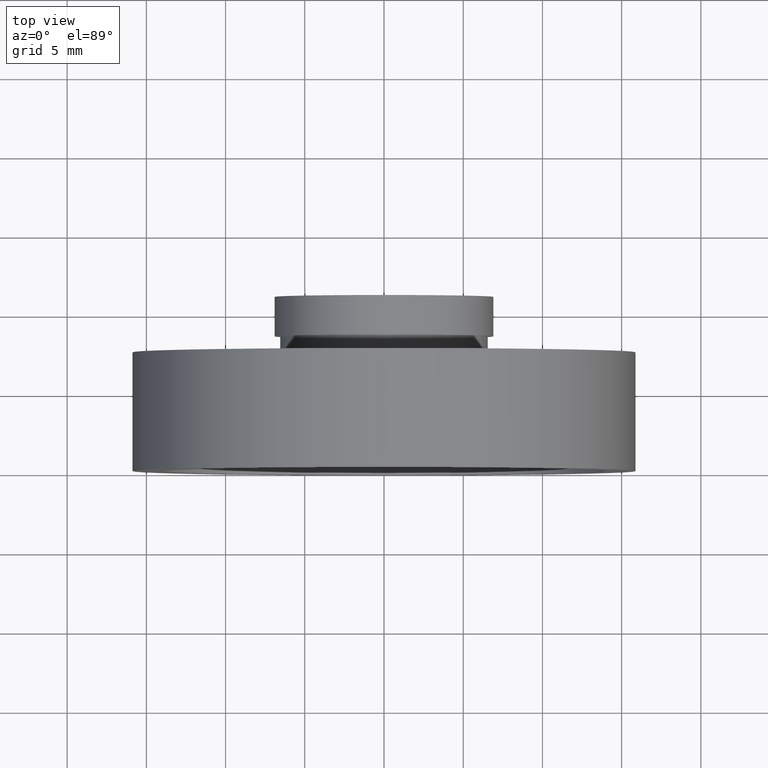
[diagram: clean part render]
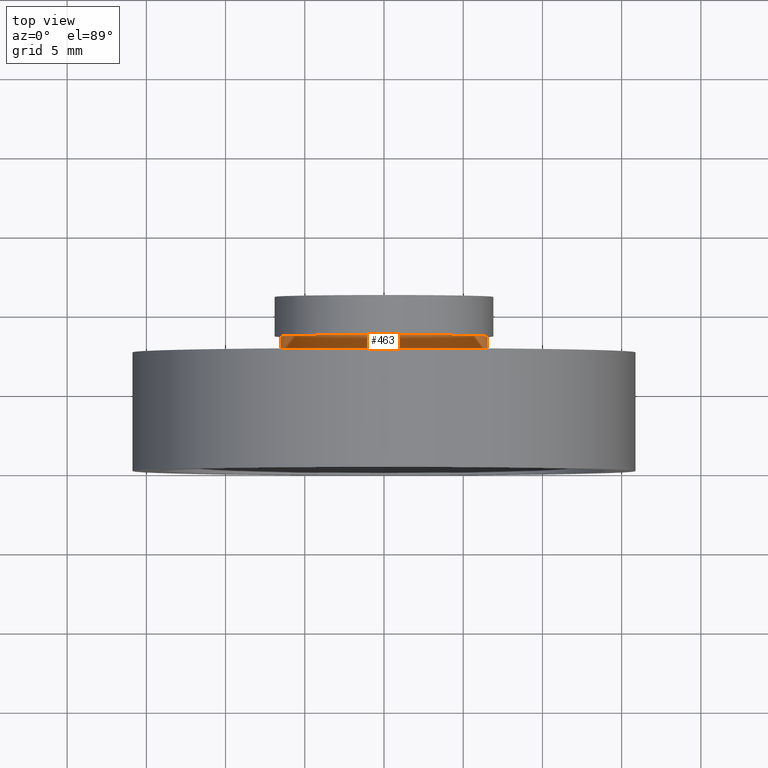
[diagram: same view with one face highlighted and labeled with its STEP entity id]
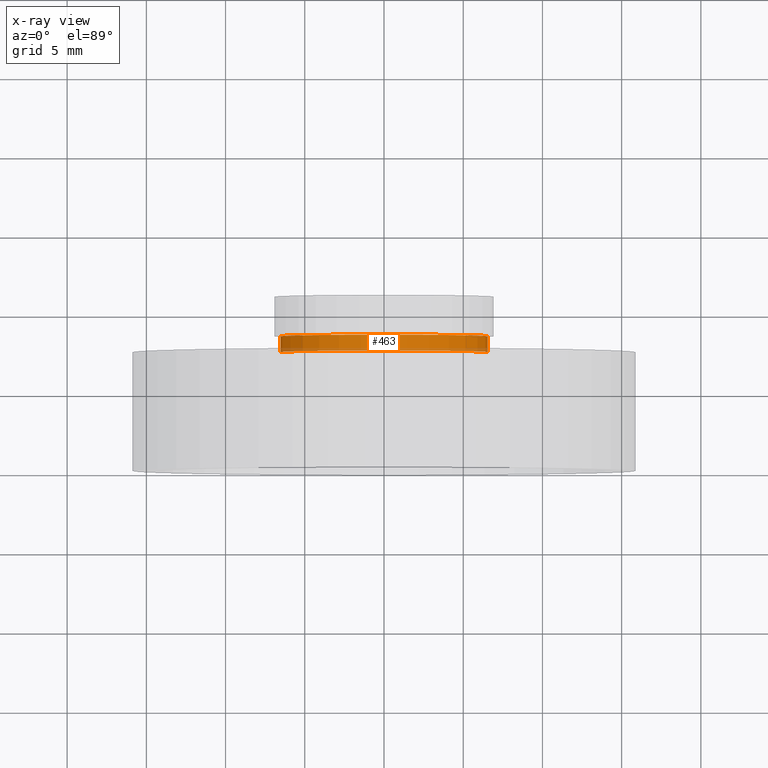
[diagram: x-ray of the same camera — body ghosted, the highlighted face saturated]
A machine part, top view. The second image highlights one B-rep face of the part: STEP entity #463.
The next image is the same camera in x-ray: the body ghosted, the highlighted face saturated — about 17% of this face is hidden behind the body in this view.
In plain terms, the highlighted cylindrical surface (partial cylindrical patch) has radius 6.55 mm, axis along (-0, 1, -0).
Its self-contained STEP definition (entity closure, byte-faithful):
#51 = CIRCLE ( 'NONE', #312, 6.549999999999999800 ) ;
#76 = CARTESIAN_POINT ( 'NONE',  ( 6.549999999999998900, 16.88601823708207700, 8.021436534415162300E-016 ) ) ;
#80 = DIRECTION ( 'NONE',  ( -1.224646799147351000E-016, 1.000000000000000000, -0.0000000000000000000 ) ) ;
#82 = ORIENTED_EDGE ( 'NONE', *, *, #593, .T. ) ;
#89 = VERTEX_POINT ( 'NONE', #297 ) ;
#103 = LINE ( 'NONE', #76, #601 ) ;
#106 = ORIENTED_EDGE ( 'NONE', *, *, #214, .F. ) ;
#130 = DIRECTION ( 'NONE',  ( -1.224646799147351000E-016, 1.000000000000000000, -0.0000000000000000000 ) ) ;
#148 = VECTOR ( 'NONE', #130, 1000.000000000000000 ) ;
#166 = CARTESIAN_POINT ( 'NONE',  ( 1.026991039163387500E-015, 8.500000000000000000, 0.0000000000000000000 ) ) ;
#180 = DIRECTION ( 'NONE',  ( -1.224646799147351000E-016, 1.000000000000000000, -0.0000000000000000000 ) ) ;
#187 = DIRECTION ( 'NONE',  ( -1.000000000000000000, -1.324216393875425300E-016, 0.0000000000000000000 ) ) ;
#197 = FACE_OUTER_BOUND ( 'NONE', #418, .T. ) ;
#214 = EDGE_CURVE ( 'NONE', #367, #89, #532, .T. ) ;
#265 = DIRECTION ( 'NONE',  ( -1.224646799147351000E-016, 1.000000000000000000, -0.0000000000000000000 ) ) ;
#269 = CARTESIAN_POINT ( 'NONE',  ( -6.549999999999998000, 8.500000000000000000, 0.0000000000000000000 ) ) ;
#273 = CARTESIAN_POINT ( 'NONE',  ( 6.550000000000000700, 7.500000000000000900, 8.021436534415164200E-016 ) ) ;
#279 = EDGE_CURVE ( 'NONE', #426, #367, #503, .T. ) ;
#297 = CARTESIAN_POINT ( 'NONE',  ( 6.549999999999999800, 8.500000000000000000, 8.021436534415162300E-016 ) ) ;
#308 = DIRECTION ( 'NONE',  ( -1.000000000000000000, 0.0000000000000000000, 0.0000000000000000000 ) ) ;
#312 = AXIS2_PLACEMENT_3D ( 'NONE', #350, #445, #187 ) ;
#320 = CARTESIAN_POINT ( 'NONE',  ( 0.0000000000000000000, 16.88601823708207700, 0.0000000000000000000 ) ) ;
#327 = CARTESIAN_POINT ( 'NONE',  ( -6.549999999999998900, 7.499999999999999100, 0.0000000000000000000 ) ) ;
#332 = DIRECTION ( 'NONE',  ( -1.000000000000000000, 0.0000000000000000000, 0.0000000000000000000 ) ) ;
#348 = EDGE_CURVE ( 'NONE', #381, #89, #103, .T. ) ;
#350 = CARTESIAN_POINT ( 'NONE',  ( 1.149455719078122500E-015, 7.500000000000000000, 0.0000000000000000000 ) ) ;
#367 = VERTEX_POINT ( 'NONE', #269 ) ;
#381 = VERTEX_POINT ( 'NONE', #273 ) ;
#402 = CYLINDRICAL_SURFACE ( 'NONE', #530, 6.549999999999998900 ) ;
#411 = CARTESIAN_POINT ( 'NONE',  ( -6.549999999999998900, 16.88601823708207700, 0.0000000000000000000 ) ) ;
#418 = EDGE_LOOP ( 'NONE', ( #82, #550, #106, #459 ) ) ;
#426 = VERTEX_POINT ( 'NONE', #327 ) ;
#445 = DIRECTION ( 'NONE',  ( -1.224646799147351000E-016, 1.000000000000000000, -0.0000000000000000000 ) ) ;
#459 = ORIENTED_EDGE ( 'NONE', *, *, #279, .F. ) ;
#463 = ADVANCED_FACE ( 'NONE', ( #197 ), #402, .T. ) ;
#503 = LINE ( 'NONE', #411, #148 ) ;
#530 = AXIS2_PLACEMENT_3D ( 'NONE', #320, #180, #332 ) ;
#532 = CIRCLE ( 'NONE', #598, 6.549999999999998900 ) ;
#550 = ORIENTED_EDGE ( 'NONE', *, *, #348, .T. ) ;
#593 = EDGE_CURVE ( 'NONE', #426, #381, #51, .T. ) ;
#598 = AXIS2_PLACEMENT_3D ( 'NONE', #166, #265, #308 ) ;
#601 = VECTOR ( 'NONE', #80, 1000.000000000000000 ) ;